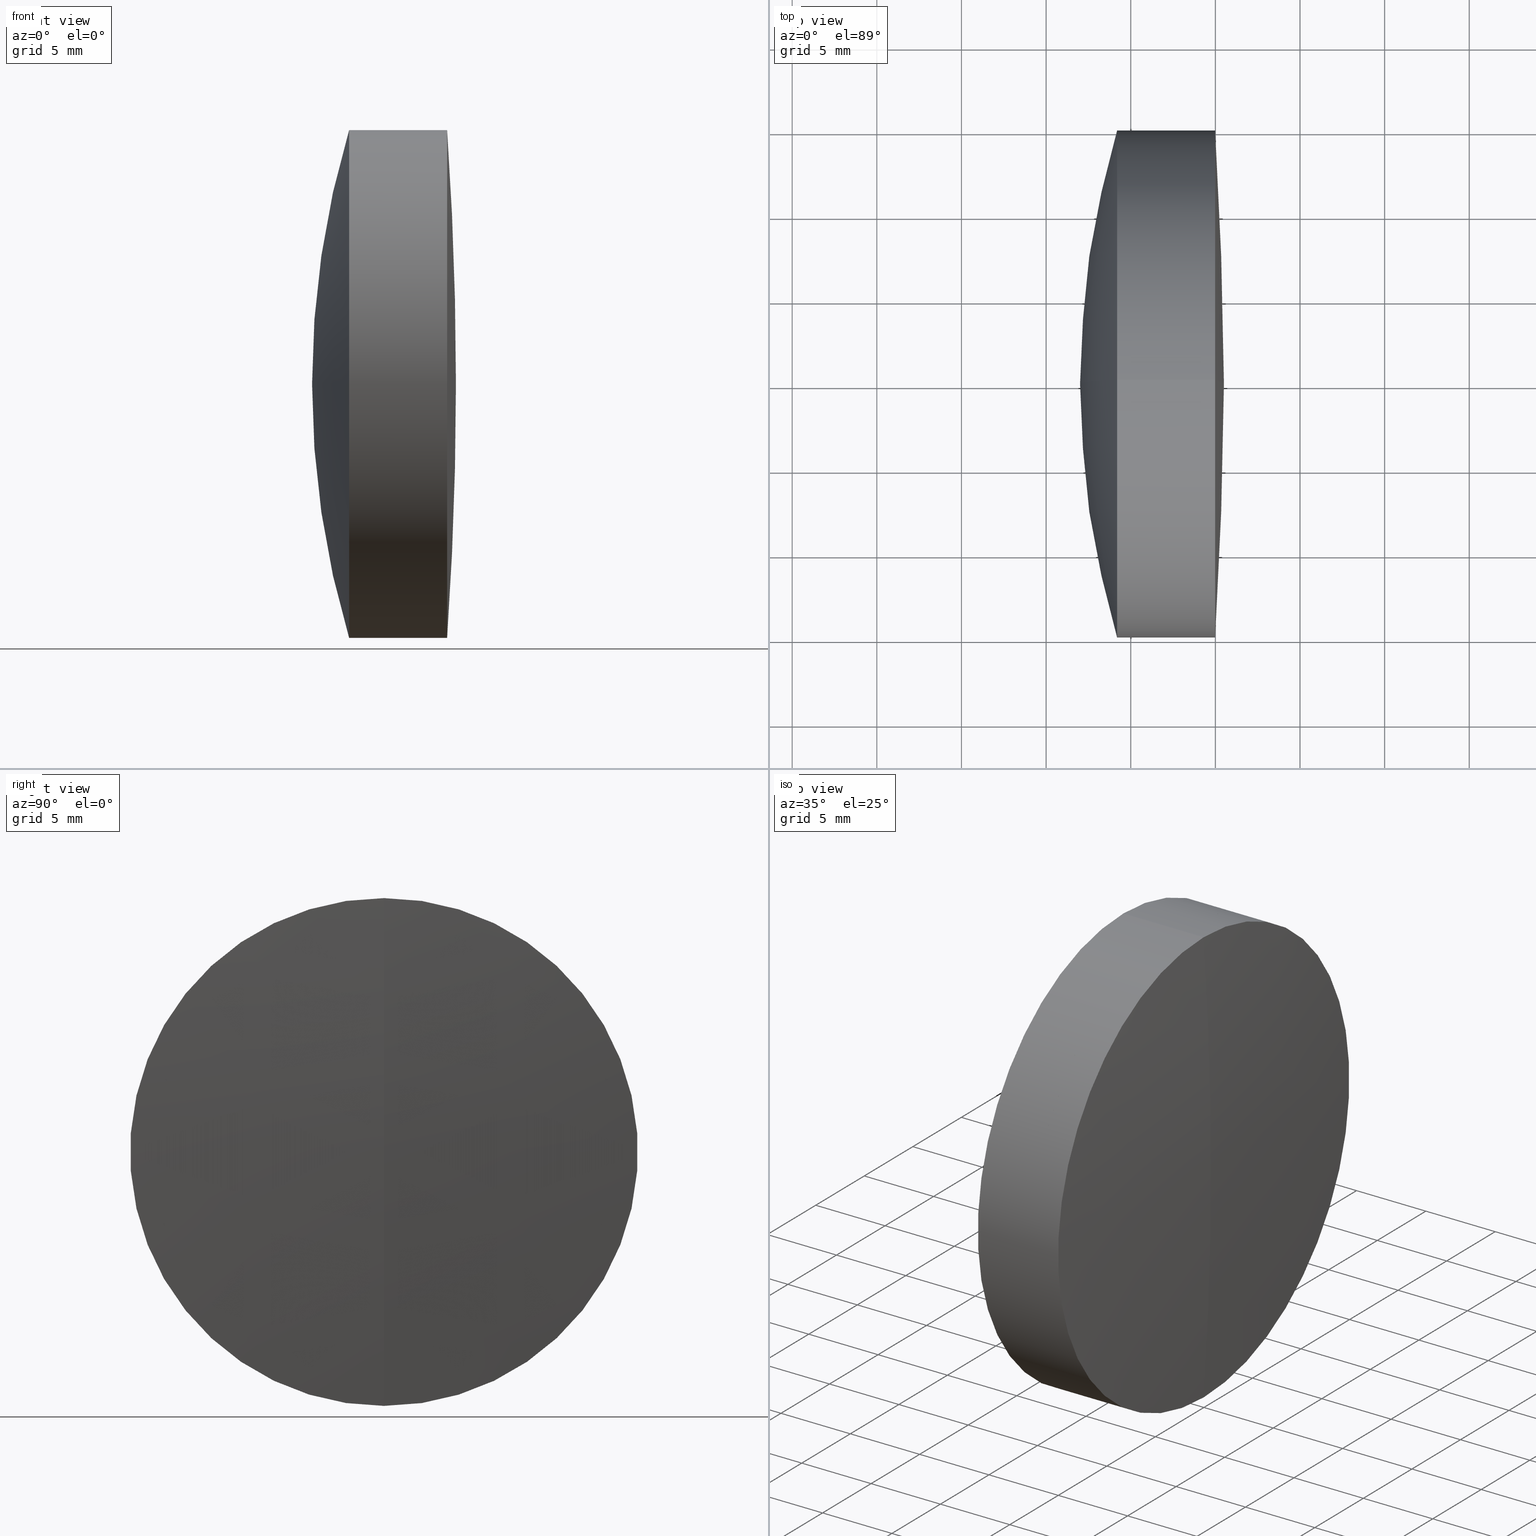
[diagram: canonical four-view strip — front | top / right | iso, engineering-drawing reading convention]
A machine part, canonical four-view strip (front | top / right | iso — engineering-drawing reading convention). The complete STEP part file that produces these views, byte-faithful:
ISO-10303-21;
HEADER;
FILE_DESCRIPTION (( 'STEP AP214' ),
    '1' );
FILE_NAME ('145131.STEP',
    '2019-06-04T02:16:01',
    ( 'user' ),
    ( '΢���й�' ),
    'SwSTEP 2.0',
    'SolidWorks 2016',
    '' );
FILE_SCHEMA (( 'AUTOMOTIVE_DESIGN' ));
ENDSEC;

DATA;
#1 = APPLICATION_CONTEXT ( 'automotive_design' ) ;
#2 = AXIS2_PLACEMENT_3D ( 'NONE', #231, #78, #183 ) ;
#3 =( LENGTH_UNIT ( ) NAMED_UNIT ( * ) SI_UNIT ( .MILLI., .METRE. ) );
#4 = ORIENTED_EDGE ( 'NONE', *, *, #266, .T. ) ;
#5 =( LENGTH_UNIT ( ) NAMED_UNIT ( * ) SI_UNIT ( .MILLI., .METRE. ) );
#6 = CARTESIAN_POINT ( 'NONE',  ( 532.9862274353328100, 0.0000000000000000000, 0.0000000000000000000 ) ) ;
#7 = COLOUR_RGB ( '',1.000000000000000000, 1.000000000000000000, 1.000000000000000000 ) ;
#8 = DIRECTION ( 'NONE',  ( -0.0000000000000000000, 1.000000000000000000, 1.224646799147353200E-016 ) ) ;
#9 = SURFACE_STYLE_FILL_AREA ( #180 ) ;
#10 = EDGE_LOOP ( 'NONE', ( #16, #149, #244, #250 ) ) ;
#11 = DIRECTION ( 'NONE',  ( 0.0000000000000000000, 0.0000000000000000000, 1.000000000000000000 ) ) ;
#12 = CIRCLE ( 'NONE', #173, 14.99999999999973900 ) ;
#13 = CARTESIAN_POINT ( 'NONE',  ( 319.2069652250824000, 0.0000000000000000000, 0.0000000000000000000 ) ) ;
#14 = FACE_OUTER_BOUND ( 'NONE', #337, .T. ) ;
#15 = ORIENTED_EDGE ( 'NONE', *, *, #272, .T. ) ;
#16 = ORIENTED_EDGE ( 'NONE', *, *, #181, .T. ) ;
#17 = ADVANCED_FACE ( 'NONE', ( #14 ), #297, .T. ) ;
#18 = AXIS2_PLACEMENT_3D ( 'NONE', #276, #262, #50 ) ;
#19 = CARTESIAN_POINT ( 'NONE',  ( 317.2069652250824000, 0.0000000000000000000, 9.183549615799121200E-038 ) ) ;
#20 = PRESENTATION_LAYER_ASSIGNMENT (  '', '', ( #315 ) ) ;
#21 = VECTOR ( 'NONE', #344, 1000.000000000000000 ) ;
#22 = ORIENTED_EDGE ( 'NONE', *, *, #247, .F. ) ;
#23 = PRESENTATION_LAYER_ASSIGNMENT (  '', '', ( #300 ) ) ;
#24 = CARTESIAN_POINT ( 'NONE',  ( 317.2069652250824000, 0.0000000000000000000, 9.183549615799121200E-038 ) ) ;
#25 = DIRECTION ( 'NONE',  ( 0.0000000000000000000, 0.0000000000000000000, 1.000000000000000000 ) ) ;
#26 = DIRECTION ( 'NONE',  ( 0.0000000000000000000, 1.000000000000000000, 0.0000000000000000000 ) ) ;
#27 = VECTOR ( 'NONE', #326, 1000.000000000000000 ) ;
#28 = DIRECTION ( 'NONE',  ( 0.0000000000000000000, 1.000000000000000000, 0.0000000000000000000 ) ) ;
#29 = DIRECTION ( 'NONE',  ( 1.000000000000000000, 0.0000000000000000000, 0.0000000000000000000 ) ) ;
#30 = SURFACE_SIDE_STYLE ('',( #45 ) ) ;
#31 = CARTESIAN_POINT ( 'NONE',  ( 532.9862274353328100, 0.0000000000000000000, 14.99999999999960200 ) ) ;
#32 = SURFACE_SIDE_STYLE ('',( #332 ) ) ;
#33 = CIRCLE ( 'NONE', #237, 216.2999999999999000 ) ;
#34 = FILL_AREA_STYLE_COLOUR ( '', #7 ) ;
#35 = CARTESIAN_POINT ( 'NONE',  ( 532.9862274353328100, 0.0000000000000000000, 0.0000000000000000000 ) ) ;
#36 = MANIFOLD_SOLID_BREP ( '��ת3', #309 ) ;
#37 = DIRECTION ( 'NONE',  ( -1.000000000000000000, -0.0000000000000000000, -0.0000000000000000000 ) ) ;
#38 = AXIS2_PLACEMENT_3D ( 'NONE', #148, #273, #11 ) ;
#39 = VERTEX_POINT ( 'NONE', #101 ) ;
#40 = SPHERICAL_SURFACE ( 'NONE', #70, 216.3000000000000400 ) ;
#41 = MECHANICAL_DESIGN_GEOMETRIC_PRESENTATION_REPRESENTATION (  '', ( #315 ), #55 ) ;
#42 = MECHANICAL_DESIGN_GEOMETRIC_PRESENTATION_REPRESENTATION (  '', ( #300 ), #56 ) ;
#43 = AXIS2_PLACEMENT_3D ( 'NONE', #91, #86, #76 ) ;
#44 = ADVANCED_FACE ( 'NONE', ( #318 ), #40, .T. ) ;
#45 = SURFACE_STYLE_FILL_AREA ( #306 ) ;
#46 = FACE_OUTER_BOUND ( 'NONE', #165, .T. ) ;
#47 = EDGE_LOOP ( 'NONE', ( #213, #145, #118 ) ) ;
#48 = DIRECTION ( 'NONE',  ( 0.0000000000000000000, -1.000000000000000000, 0.0000000000000000000 ) ) ;
#49 = APPLICATION_PROTOCOL_DEFINITION ( 'draft international standard', 'automotive_design', 1998, #1 ) ;
#50 = DIRECTION ( 'NONE',  ( 0.0000000000000000000, 0.0000000000000000000, 1.000000000000000000 ) ) ;
#51 = CARTESIAN_POINT ( 'NONE',  ( 534.9862274353326900, 0.0000000000000000000, 14.99999999999961500 ) ) ;
#52 = DIRECTION ( 'NONE',  ( -1.000000000000000000, -0.0000000000000000000, -0.0000000000000000000 ) ) ;
#53 = VERTEX_POINT ( 'NONE', #124 ) ;
#54 = SURFACE_STYLE_USAGE ( .BOTH. , #30 ) ;
#55 =( GEOMETRIC_REPRESENTATION_CONTEXT ( 3 ) GLOBAL_UNCERTAINTY_ASSIGNED_CONTEXT ( ( #223 ) ) GLOBAL_UNIT_ASSIGNED_CONTEXT ( ( #338, #99, #130 ) ) REPRESENTATION_CONTEXT ( 'NONE', 'WORKASPACE' ) );
#56 =( GEOMETRIC_REPRESENTATION_CONTEXT ( 3 ) GLOBAL_UNCERTAINTY_ASSIGNED_CONTEXT ( ( #96 ) ) GLOBAL_UNIT_ASSIGNED_CONTEXT ( ( #3, #208, #323 ) ) REPRESENTATION_CONTEXT ( 'NONE', 'WORKASPACE' ) );
#57 = DIRECTION ( 'NONE',  ( 0.0000000000000000000, 0.0000000000000000000, 1.000000000000000000 ) ) ;
#58 = EDGE_CURVE ( 'NONE', #127, #39, #341, .T. ) ;
#59 = CARTESIAN_POINT ( 'NONE',  ( 533.5069652250824700, 0.0000000000000000000, 1.324455513277862900E-014 ) ) ;
#60 = DIRECTION ( 'NONE',  ( -1.000000000000000000, -0.0000000000000000000, -0.0000000000000000000 ) ) ;
#61 = DIRECTION ( 'NONE',  ( 0.0000000000000000000, -1.224646799147353500E-016, 1.000000000000000000 ) ) ;
#62 = SPHERICAL_SURFACE ( 'NONE', #251, 52.50000000000002100 ) ;
#63 = STYLED_ITEM ( 'NONE', ( #191 ), #271 ) ;
#64 = ORIENTED_EDGE ( 'NONE', *, *, #58, .F. ) ;
#65 = FACE_OUTER_BOUND ( 'NONE', #264, .T. ) ;
#66 = ORIENTED_EDGE ( 'NONE', *, *, #240, .F. ) ;
#67 = ORIENTED_EDGE ( 'NONE', *, *, #181, .F. ) ;
#68 = ADVANCED_FACE ( 'NONE', ( #303 ), #308, .T. ) ;
#69 = CARTESIAN_POINT ( 'NONE',  ( 527.0069652250824700, 0.0000000000000000000, -4.754858325981071400E-013 ) ) ;
#70 = AXIS2_PLACEMENT_3D ( 'NONE', #19, #105, #126 ) ;
#71 = CIRCLE ( 'NONE', #203, 216.3000000000000400 ) ;
#72 = VERTEX_POINT ( 'NONE', #69 ) ;
#73 = CARTESIAN_POINT ( 'NONE',  ( 579.5069652250824700, 0.0000000000000000000, -4.787005304458688400E-013 ) ) ;
#74 = DIRECTION ( 'NONE',  ( 0.0000000000000000000, 0.0000000000000000000, -1.000000000000000000 ) ) ;
#75 = EDGE_CURVE ( 'NONE', #127, #82, #153, .T. ) ;
#76 = DIRECTION ( 'NONE',  ( 0.0000000000000000000, 0.0000000000000000000, 1.000000000000000000 ) ) ;
#77 =( NAMED_UNIT ( * ) PLANE_ANGLE_UNIT ( ) SI_UNIT ( $, .RADIAN. ) );
#78 = DIRECTION ( 'NONE',  ( -1.000000000000000000, -0.0000000000000000000, -0.0000000000000000000 ) ) ;
#79 = ORIENTED_EDGE ( 'NONE', *, *, #233, .F. ) ;
#80 = AXIS2_PLACEMENT_3D ( 'NONE', #35, #325, #141 ) ;
#81 = DIRECTION ( 'NONE',  ( 0.0000000000000000000, 0.0000000000000000000, 1.000000000000000000 ) ) ;
#82 = VERTEX_POINT ( 'NONE', #284 ) ;
#83 = DIRECTION ( 'NONE',  ( 0.0000000000000000000, 0.0000000000000000000, 1.000000000000000000 ) ) ;
#84 = EDGE_LOOP ( 'NONE', ( #64, #188, #283 ) ) ;
#85 = ORIENTED_EDGE ( 'NONE', *, *, #75, .F. ) ;
#86 = DIRECTION ( 'NONE',  ( -1.000000000000000000, -0.0000000000000000000, -0.0000000000000000000 ) ) ;
#87 = FILL_AREA_STYLE_COLOUR ( '', #122 ) ;
#88 = LINE ( 'NONE', #232, #21 ) ;
#89 = ORIENTED_EDGE ( 'NONE', *, *, #128, .F. ) ;
#90 = AXIS2_PLACEMENT_3D ( 'NONE', #259, #157, #279 ) ;
#91 = CARTESIAN_POINT ( 'NONE',  ( 529.1954357313371700, 0.0000000000000000000, 0.0000000000000000000 ) ) ;
#92 = EDGE_CURVE ( 'NONE', #246, #260, #144, .T. ) ;
#93 = FACE_OUTER_BOUND ( 'NONE', #47, .T. ) ;
#94 = CIRCLE ( 'NONE', #217, 14.99999999999961500 ) ;
#95 = ORIENTED_EDGE ( 'NONE', *, *, #252, .F. ) ;
#96 = UNCERTAINTY_MEASURE_WITH_UNIT (LENGTH_MEASURE( 1.000000000000000100E-005 ), #3, 'distance_accuracy_value', 'NONE');
#97 = ADVANCED_FACE ( 'NONE', ( #294 ), #222, .F. ) ;
#98 = AXIS2_PLACEMENT_3D ( 'NONE', #175, #60, #261 ) ;
#99 =( NAMED_UNIT ( * ) PLANE_ANGLE_UNIT ( ) SI_UNIT ( $, .RADIAN. ) );
#100 = ORIENTED_EDGE ( 'NONE', *, *, #220, .T. ) ;
#101 = CARTESIAN_POINT ( 'NONE',  ( 532.9862274353328100, 0.0000000000000000000, 14.99999999999968700 ) ) ;
#102 = SPHERICAL_SURFACE ( 'NONE', #238, 216.3000000000000100 ) ;
#103 = CYLINDRICAL_SURFACE ( 'NONE', #268, 14.99999999999967700 ) ;
#104 = EDGE_LOOP ( 'NONE', ( #123, #100, #241 ) ) ;
#105 = DIRECTION ( 'NONE',  ( 0.0000000000000000000, 1.000000000000000000, 0.0000000000000000000 ) ) ;
#106 = ORIENTED_EDGE ( 'NONE', *, *, #247, .T. ) ;
#107 = CARTESIAN_POINT ( 'NONE',  ( 0.0000000000000000000, 0.0000000000000000000, 0.0000000000000000000 ) ) ;
#108 = DIRECTION ( 'NONE',  ( 0.0000000000000000000, -1.224646799147353200E-016, 1.000000000000000000 ) ) ;
#109 = AXIS2_PLACEMENT_3D ( 'NONE', #73, #28, #255 ) ;
#110 = AXIS2_PLACEMENT_3D ( 'NONE', #107, #239, #29 ) ;
#111 = DIRECTION ( 'NONE',  ( 0.0000000000000000000, 0.0000000000000000000, 1.000000000000000000 ) ) ;
#112 = EDGE_CURVE ( 'NONE', #82, #39, #334, .T. ) ;
#113 = DIRECTION ( 'NONE',  ( -1.000000000000000000, -0.0000000000000000000, -0.0000000000000000000 ) ) ;
#114 = DIRECTION ( 'NONE',  ( 0.0000000000000000000, 0.0000000000000000000, 1.000000000000000000 ) ) ;
#115 = CARTESIAN_POINT ( 'NONE',  ( -0.5519199926577972300, 0.0000000000000000000, 14.99999999999967700 ) ) ;
#116 = PRESENTATION_LAYER_ASSIGNMENT (  '', '', ( #63 ) ) ;
#117 = ADVANCED_BREP_SHAPE_REPRESENTATION ( '145131', ( #271, #36, #110 ), #187 ) ;
#118 = ORIENTED_EDGE ( 'NONE', *, *, #266, .F. ) ;
#119 = CYLINDRICAL_SURFACE ( 'NONE', #98, 14.99999999999960700 ) ;
#120 = DIRECTION ( 'NONE',  ( 0.0000000000000000000, -1.000000000000000000, 0.0000000000000000000 ) ) ;
#121 = ADVANCED_FACE ( 'NONE', ( #93 ), #263, .T. ) ;
#122 = COLOUR_RGB ( '',1.000000000000000000, 1.000000000000000000, 1.000000000000000000 ) ;
#123 = ORIENTED_EDGE ( 'NONE', *, *, #204, .F. ) ;
#124 = CARTESIAN_POINT ( 'NONE',  ( 535.5069652250823500, 0.0000000000000000000, 1.324455513277862000E-014 ) ) ;
#125 = PRODUCT_DEFINITION ( 'δ֪', '', #150, #320 ) ;
#126 = DIRECTION ( 'NONE',  ( 0.0000000000000000000, 0.0000000000000000000, 1.000000000000000000 ) ) ;
#127 = VERTEX_POINT ( 'NONE', #172 ) ;
#128 = EDGE_CURVE ( 'NONE', #139, #210, #156, .T. ) ;
#129 = CARTESIAN_POINT ( 'NONE',  ( 317.2069652250824000, 0.0000000000000000000, 9.183549615799121200E-038 ) ) ;
#130 =( NAMED_UNIT ( * ) SI_UNIT ( $, .STERADIAN. ) SOLID_ANGLE_UNIT ( ) );
#131 =( NAMED_UNIT ( * ) SI_UNIT ( $, .STERADIAN. ) SOLID_ANGLE_UNIT ( ) );
#132 = AXIS2_PLACEMENT_3D ( 'NONE', #133, #312, #253 ) ;
#133 = CARTESIAN_POINT ( 'NONE',  ( 534.9862274353326900, 0.0000000000000000000, 0.0000000000000000000 ) ) ;
#134 = CARTESIAN_POINT ( 'NONE',  ( 317.2069652250824000, 0.0000000000000000000, 9.183549615799121200E-038 ) ) ;
#135 = ORIENTED_EDGE ( 'NONE', *, *, #198, .T. ) ;
#136 = MECHANICAL_DESIGN_GEOMETRIC_PRESENTATION_REPRESENTATION (  '', ( #63 ), #155 ) ;
#137 = CARTESIAN_POINT ( 'NONE',  ( 319.2069652250824000, 0.0000000000000000000, 0.0000000000000000000 ) ) ;
#138 = FACE_OUTER_BOUND ( 'NONE', #330, .T. ) ;
#139 = VERTEX_POINT ( 'NONE', #301 ) ;
#140 = DIRECTION ( 'NONE',  ( 0.0000000000000000000, 0.0000000000000000000, 1.000000000000000000 ) ) ;
#141 = DIRECTION ( 'NONE',  ( 0.0000000000000000000, 0.0000000000000000000, 1.000000000000000000 ) ) ;
#142 = DIRECTION ( 'NONE',  ( -1.000000000000000000, -0.0000000000000000000, -0.0000000000000000000 ) ) ;
#143 = DIRECTION ( 'NONE',  ( -1.000000000000000000, -0.0000000000000000000, -0.0000000000000000000 ) ) ;
#144 = CIRCLE ( 'NONE', #132, 14.99999999999961500 ) ;
#145 = ORIENTED_EDGE ( 'NONE', *, *, #151, .T. ) ;
#146 = CIRCLE ( 'NONE', #347, 52.50000000000002100 ) ;
#147 = EDGE_LOOP ( 'NONE', ( #305, #106, #179 ) ) ;
#148 = CARTESIAN_POINT ( 'NONE',  ( 534.9862274353326900, 0.0000000000000000000, 0.0000000000000000000 ) ) ;
#149 = ORIENTED_EDGE ( 'NONE', *, *, #128, .T. ) ;
#150 = PRODUCT_DEFINITION_FORMATION_WITH_SPECIFIED_SOURCE ( '�κ�', '', #302, .NOT_KNOWN. ) ;
#151 = EDGE_CURVE ( 'NONE', #154, #235, #169, .T. ) ;
#152 = AXIS2_PLACEMENT_3D ( 'NONE', #160, #280, #111 ) ;
#153 = CIRCLE ( 'NONE', #90, 216.3000000000000100 ) ;
#154 = VERTEX_POINT ( 'NONE', #59 ) ;
#155 =( GEOMETRIC_REPRESENTATION_CONTEXT ( 3 ) GLOBAL_UNCERTAINTY_ASSIGNED_CONTEXT ( ( #254 ) ) GLOBAL_UNIT_ASSIGNED_CONTEXT ( ( #5, #243, #168 ) ) REPRESENTATION_CONTEXT ( 'NONE', 'WORKASPACE' ) );
#156 = LINE ( 'NONE', #298, #27 ) ;
#157 = DIRECTION ( 'NONE',  ( -0.0000000000000000000, 1.000000000000000000, 1.224646799147353200E-016 ) ) ;
#158 = FILL_AREA_STYLE_COLOUR ( '', #288 ) ;
#159 = CARTESIAN_POINT ( 'NONE',  ( 579.5069652250824700, 0.0000000000000000000, -4.787005304458688400E-013 ) ) ;
#160 = CARTESIAN_POINT ( 'NONE',  ( 532.9862274353328100, 0.0000000000000000000, 0.0000000000000000000 ) ) ;
#161 = CLOSED_SHELL ( 'NONE', ( #44, #248, #335, #68, #278, #121 ) ) ;
#162 = DIRECTION ( 'NONE',  ( 0.0000000000000000000, 1.000000000000000000, 0.0000000000000000000 ) ) ;
#163 = CARTESIAN_POINT ( 'NONE',  ( 579.5069652250824700, 0.0000000000000000000, -4.787005304458688400E-013 ) ) ;
#164 = DIRECTION ( 'NONE',  ( 0.0000000000000000000, -1.224646799147353200E-016, 1.000000000000000000 ) ) ;
#165 = EDGE_LOOP ( 'NONE', ( #277, #194, #66 ) ) ;
#166 = PRODUCT_RELATED_PRODUCT_CATEGORY ( 'part', '', ( #302 ) ) ;
#167 = EDGE_CURVE ( 'NONE', #274, #210, #94, .T. ) ;
#168 =( NAMED_UNIT ( * ) SI_UNIT ( $, .STERADIAN. ) SOLID_ANGLE_UNIT ( ) );
#169 = CIRCLE ( 'NONE', #185, 216.3000000000000400 ) ;
#170 = AXIS2_PLACEMENT_3D ( 'NONE', #316, #339, #25 ) ;
#171 = CARTESIAN_POINT ( 'NONE',  ( 529.1954357313371700, 0.0000000000000000000, 0.0000000000000000000 ) ) ;
#172 = CARTESIAN_POINT ( 'NONE',  ( 533.5069652250824700, 0.0000000000000000000, 1.324455513277862600E-014 ) ) ;
#173 = AXIS2_PLACEMENT_3D ( 'NONE', #6, #142, #83 ) ;
#174 = ORIENTED_EDGE ( 'NONE', *, *, #151, .F. ) ;
#175 = CARTESIAN_POINT ( 'NONE',  ( 124.5233095260452400, 0.0000000000000000000, 0.0000000000000000000 ) ) ;
#176 = SPHERICAL_SURFACE ( 'NONE', #290, 216.2999999999999000 ) ;
#177 = ADVANCED_FACE ( 'NONE', ( #234 ), #103, .T. ) ;
#178 = SHAPE_DEFINITION_REPRESENTATION ( #333, #117 ) ;
#179 = ORIENTED_EDGE ( 'NONE', *, *, #233, .T. ) ;
#180 = FILL_AREA_STYLE ('',( #158 ) ) ;
#181 = EDGE_CURVE ( 'NONE', #235, #139, #282, .T. ) ;
#182 = CARTESIAN_POINT ( 'NONE',  ( -0.5519199926577972300, 1.836970198720990100E-015, -14.99999999999967700 ) ) ;
#183 = DIRECTION ( 'NONE',  ( 0.0000000000000000000, 0.0000000000000000000, 1.000000000000000000 ) ) ;
#184 = DIRECTION ( 'NONE',  ( 0.0000000000000000000, 0.0000000000000000000, -1.000000000000000000 ) ) ;
#185 = AXIS2_PLACEMENT_3D ( 'NONE', #134, #214, #184 ) ;
#186 = VECTOR ( 'NONE', #218, 1000.000000000000000 ) ;
#187 =( GEOMETRIC_REPRESENTATION_CONTEXT ( 3 ) GLOBAL_UNCERTAINTY_ASSIGNED_CONTEXT ( ( #200 ) ) GLOBAL_UNIT_ASSIGNED_CONTEXT ( ( #242, #77, #131 ) ) REPRESENTATION_CONTEXT ( 'NONE', 'WORKASPACE' ) );
#188 = ORIENTED_EDGE ( 'NONE', *, *, #75, .T. ) ;
#189 = PRODUCT_CONTEXT ( 'NONE', #328, 'mechanical' ) ;
#190 = DIRECTION ( 'NONE',  ( -0.0000000000000000000, 1.000000000000000000, 1.224646799147353200E-016 ) ) ;
#191 = PRESENTATION_STYLE_ASSIGNMENT (( #216 ) ) ;
#192 = FILL_AREA_STYLE ('',( #34 ) ) ;
#193 = DIRECTION ( 'NONE',  ( 0.0000000000000000000, 1.000000000000000000, 0.0000000000000000000 ) ) ;
#194 = ORIENTED_EDGE ( 'NONE', *, *, #204, .T. ) ;
#195 = FACE_OUTER_BOUND ( 'NONE', #10, .T. ) ;
#196 = FACE_OUTER_BOUND ( 'NONE', #104, .T. ) ;
#197 = ORIENTED_EDGE ( 'NONE', *, *, #272, .F. ) ;
#198 = EDGE_CURVE ( 'NONE', #235, #274, #88, .T. ) ;
#199 = AXIS2_PLACEMENT_3D ( 'NONE', #345, #317, #140 ) ;
#200 = UNCERTAINTY_MEASURE_WITH_UNIT (LENGTH_MEASURE( 1.000000000000000100E-005 ), #242, 'distance_accuracy_value', 'NONE');
#201 = ADVANCED_FACE ( 'NONE', ( #196 ), #176, .T. ) ;
#202 = ORIENTED_EDGE ( 'NONE', *, *, #252, .T. ) ;
#203 = AXIS2_PLACEMENT_3D ( 'NONE', #257, #8, #61 ) ;
#204 = EDGE_CURVE ( 'NONE', #53, #246, #33, .T. ) ;
#205 = CYLINDRICAL_SURFACE ( 'NONE', #219, 14.99999999999960700 ) ;
#206 = ORIENTED_EDGE ( 'NONE', *, *, #112, .F. ) ;
#207 = DIRECTION ( 'NONE',  ( 0.0000000000000000000, 0.0000000000000000000, 1.000000000000000000 ) ) ;
#208 =( NAMED_UNIT ( * ) PLANE_ANGLE_UNIT ( ) SI_UNIT ( $, .RADIAN. ) );
#209 = CARTESIAN_POINT ( 'NONE',  ( -0.5519199926577972300, 0.0000000000000000000, 0.0000000000000000000 ) ) ;
#210 = VERTEX_POINT ( 'NONE', #285 ) ;
#211 = CARTESIAN_POINT ( 'NONE',  ( 579.5069652250824700, 0.0000000000000000000, -4.787005304458688400E-013 ) ) ;
#212 = VECTOR ( 'NONE', #113, 1000.000000000000000 ) ;
#213 = ORIENTED_EDGE ( 'NONE', *, *, #286, .F. ) ;
#214 = DIRECTION ( 'NONE',  ( 0.0000000000000000000, -1.000000000000000000, 0.0000000000000000000 ) ) ;
#215 = EDGE_CURVE ( 'NONE', #210, #72, #307, .T. ) ;
#216 = SURFACE_STYLE_USAGE ( .BOTH. , #32 ) ;
#217 = AXIS2_PLACEMENT_3D ( 'NONE', #171, #143, #265 ) ;
#218 = DIRECTION ( 'NONE',  ( -1.000000000000000000, -0.0000000000000000000, -0.0000000000000000000 ) ) ;
#219 = AXIS2_PLACEMENT_3D ( 'NONE', #321, #37, #114 ) ;
#220 = EDGE_CURVE ( 'NONE', #53, #260, #313, .T. ) ;
#221 = FACE_OUTER_BOUND ( 'NONE', #314, .T. ) ;
#222 = SPHERICAL_SURFACE ( 'NONE', #170, 216.3000000000000100 ) ;
#223 = UNCERTAINTY_MEASURE_WITH_UNIT (LENGTH_MEASURE( 1.000000000000000100E-005 ), #338, 'distance_accuracy_value', 'NONE');
#224 = ORIENTED_EDGE ( 'NONE', *, *, #292, .F. ) ;
#225 = CIRCLE ( 'NONE', #38, 14.99999999999961500 ) ;
#226 = PRESENTATION_STYLE_ASSIGNMENT (( #258 ) ) ;
#227 = ORIENTED_EDGE ( 'NONE', *, *, #286, .T. ) ;
#228 = ADVANCED_FACE ( 'NONE', ( #46 ), #256, .T. ) ;
#229 = CARTESIAN_POINT ( 'NONE',  ( 319.2069652250824000, 0.0000000000000000000, 0.0000000000000000000 ) ) ;
#230 = ORIENTED_EDGE ( 'NONE', *, *, #58, .T. ) ;
#231 = CARTESIAN_POINT ( 'NONE',  ( -0.5519199926577972300, 0.0000000000000000000, 0.0000000000000000000 ) ) ;
#232 = CARTESIAN_POINT ( 'NONE',  ( 124.5233095260452400, 0.0000000000000000000, 14.99999999999960700 ) ) ;
#233 = EDGE_CURVE ( 'NONE', #274, #72, #146, .T. ) ;
#234 = FACE_OUTER_BOUND ( 'NONE', #289, .T. ) ;
#235 = VERTEX_POINT ( 'NONE', #31 ) ;
#236 = SURFACE_SIDE_STYLE ('',( #9 ) ) ;
#237 = AXIS2_PLACEMENT_3D ( 'NONE', #137, #296, #108 ) ;
#238 = AXIS2_PLACEMENT_3D ( 'NONE', #129, #193, #207 ) ;
#239 = DIRECTION ( 'NONE',  ( 0.0000000000000000000, 0.0000000000000000000, 1.000000000000000000 ) ) ;
#240 = EDGE_CURVE ( 'NONE', #260, #246, #225, .T. ) ;
#241 = ORIENTED_EDGE ( 'NONE', *, *, #92, .F. ) ;
#242 =( LENGTH_UNIT ( ) NAMED_UNIT ( * ) SI_UNIT ( .MILLI., .METRE. ) );
#243 =( NAMED_UNIT ( * ) PLANE_ANGLE_UNIT ( ) SI_UNIT ( $, .RADIAN. ) );
#244 = ORIENTED_EDGE ( 'NONE', *, *, #167, .F. ) ;
#245 = DIRECTION ( 'NONE',  ( 0.0000000000000000000, 0.0000000000000000000, -1.000000000000000000 ) ) ;
#246 = VERTEX_POINT ( 'NONE', #336 ) ;
#247 = EDGE_CURVE ( 'NONE', #210, #274, #281, .T. ) ;
#248 = ADVANCED_FACE ( 'NONE', ( #195 ), #119, .T. ) ;
#249 = AXIS2_PLACEMENT_3D ( 'NONE', #291, #52, #81 ) ;
#250 = ORIENTED_EDGE ( 'NONE', *, *, #198, .F. ) ;
#251 = AXIS2_PLACEMENT_3D ( 'NONE', #159, #26, #304 ) ;
#252 = EDGE_CURVE ( 'NONE', #246, #82, #293, .T. ) ;
#253 = DIRECTION ( 'NONE',  ( 0.0000000000000000000, 0.0000000000000000000, 1.000000000000000000 ) ) ;
#254 = UNCERTAINTY_MEASURE_WITH_UNIT (LENGTH_MEASURE( 1.000000000000000100E-005 ), #5, 'distance_accuracy_value', 'NONE');
#255 = DIRECTION ( 'NONE',  ( 0.0000000000000000000, 0.0000000000000000000, 1.000000000000000000 ) ) ;
#256 = SPHERICAL_SURFACE ( 'NONE', #18, 216.2999999999999000 ) ;
#257 = CARTESIAN_POINT ( 'NONE',  ( 317.2069652250824000, 0.0000000000000000000, 9.183549615799121200E-038 ) ) ;
#258 = SURFACE_STYLE_USAGE ( .BOTH. , #236 ) ;
#259 = CARTESIAN_POINT ( 'NONE',  ( 317.2069652250824000, 0.0000000000000000000, 9.183549615799121200E-038 ) ) ;
#260 = VERTEX_POINT ( 'NONE', #51 ) ;
#261 = DIRECTION ( 'NONE',  ( 0.0000000000000000000, 0.0000000000000000000, 1.000000000000000000 ) ) ;
#262 = DIRECTION ( 'NONE',  ( 0.0000000000000000000, 1.000000000000000000, 0.0000000000000000000 ) ) ;
#263 = SPHERICAL_SURFACE ( 'NONE', #199, 216.3000000000000400 ) ;
#264 = EDGE_LOOP ( 'NONE', ( #85, #230, #15 ) ) ;
#265 = DIRECTION ( 'NONE',  ( 0.0000000000000000000, 0.0000000000000000000, 1.000000000000000000 ) ) ;
#266 = EDGE_CURVE ( 'NONE', #139, #235, #324, .T. ) ;
#267 = DIRECTION ( 'NONE',  ( 0.0000000000000000000, 0.0000000000000000000, 1.000000000000000000 ) ) ;
#268 = AXIS2_PLACEMENT_3D ( 'NONE', #209, #346, #267 ) ;
#269 = APPLICATION_PROTOCOL_DEFINITION ( 'draft international standard', 'automotive_design', 1998, #328 ) ;
#270 = ORIENTED_EDGE ( 'NONE', *, *, #92, .T. ) ;
#271 = MANIFOLD_SOLID_BREP ( '��ת1', #161 ) ;
#272 = EDGE_CURVE ( 'NONE', #39, #82, #12, .T. ) ;
#273 = DIRECTION ( 'NONE',  ( -1.000000000000000000, -0.0000000000000000000, -0.0000000000000000000 ) ) ;
#274 = VERTEX_POINT ( 'NONE', #299 ) ;
#275 = ORIENTED_EDGE ( 'NONE', *, *, #240, .T. ) ;
#276 = CARTESIAN_POINT ( 'NONE',  ( 319.2069652250824000, 0.0000000000000000000, 0.0000000000000000000 ) ) ;
#277 = ORIENTED_EDGE ( 'NONE', *, *, #220, .F. ) ;
#278 = ADVANCED_FACE ( 'NONE', ( #138 ), #205, .T. ) ;
#279 = DIRECTION ( 'NONE',  ( 0.0000000000000000000, -1.224646799147353200E-016, 1.000000000000000000 ) ) ;
#280 = DIRECTION ( 'NONE',  ( -1.000000000000000000, -0.0000000000000000000, -0.0000000000000000000 ) ) ;
#281 = CIRCLE ( 'NONE', #43, 14.99999999999961500 ) ;
#282 = CIRCLE ( 'NONE', #249, 14.99999999999960200 ) ;
#283 = ORIENTED_EDGE ( 'NONE', *, *, #112, .T. ) ;
#284 = CARTESIAN_POINT ( 'NONE',  ( 532.9862274353328100, 1.836970198720991700E-015, -14.99999999999968700 ) ) ;
#285 = CARTESIAN_POINT ( 'NONE',  ( 529.1954357313371700, 1.836970198720976300E-015, -15.00000000000004400 ) ) ;
#286 = EDGE_CURVE ( 'NONE', #154, #139, #71, .T. ) ;
#287 = DIRECTION ( 'NONE',  ( 0.0000000000000000000, -1.000000000000000000, 0.0000000000000000000 ) ) ;
#288 = COLOUR_RGB ( '',1.000000000000000000, 1.000000000000000000, 1.000000000000000000 ) ;
#289 = EDGE_LOOP ( 'NONE', ( #275, #202, #197, #224 ) ) ;
#290 = AXIS2_PLACEMENT_3D ( 'NONE', #229, #162, #57 ) ;
#291 = CARTESIAN_POINT ( 'NONE',  ( 532.9862274353328100, 0.0000000000000000000, 0.0000000000000000000 ) ) ;
#292 = EDGE_CURVE ( 'NONE', #260, #39, #340, .T. ) ;
#293 = LINE ( 'NONE', #182, #212 ) ;
#294 = FACE_OUTER_BOUND ( 'NONE', #84, .T. ) ;
#295 = ORIENTED_EDGE ( 'NONE', *, *, #215, .T. ) ;
#296 = DIRECTION ( 'NONE',  ( -0.0000000000000000000, 1.000000000000000000, 1.224646799147353200E-016 ) ) ;
#297 = CYLINDRICAL_SURFACE ( 'NONE', #2, 14.99999999999967700 ) ;
#298 = CARTESIAN_POINT ( 'NONE',  ( 124.5233095260452400, 1.836970198720981900E-015, -14.99999999999960700 ) ) ;
#299 = CARTESIAN_POINT ( 'NONE',  ( 529.1954357313371700, 0.0000000000000000000, 14.99999999999956700 ) ) ;
#300 = STYLED_ITEM ( 'NONE', ( #322 ), #117 ) ;
#301 = CARTESIAN_POINT ( 'NONE',  ( 532.9862274353328100, 1.836970198720981500E-015, -14.99999999999960200 ) ) ;
#302 = PRODUCT ( '145131', '145131', '', ( #189 ) ) ;
#303 = FACE_OUTER_BOUND ( 'NONE', #147, .T. ) ;
#304 = DIRECTION ( 'NONE',  ( 0.0000000000000000000, 0.0000000000000000000, 1.000000000000000000 ) ) ;
#305 = ORIENTED_EDGE ( 'NONE', *, *, #215, .F. ) ;
#306 = FILL_AREA_STYLE ('',( #87 ) ) ;
#307 = CIRCLE ( 'NONE', #310, 52.50000000000002100 ) ;
#308 = SPHERICAL_SURFACE ( 'NONE', #109, 52.50000000000002100 ) ;
#309 = CLOSED_SHELL ( 'NONE', ( #228, #177, #97, #311, #17, #201 ) ) ;
#310 = AXIS2_PLACEMENT_3D ( 'NONE', #211, #190, #164 ) ;
#311 = ADVANCED_FACE ( 'NONE', ( #65 ), #102, .F. ) ;
#312 = DIRECTION ( 'NONE',  ( -1.000000000000000000, -0.0000000000000000000, -0.0000000000000000000 ) ) ;
#313 = CIRCLE ( 'NONE', #327, 216.2999999999999000 ) ;
#314 = EDGE_LOOP ( 'NONE', ( #329, #295, #79 ) ) ;
#315 = STYLED_ITEM ( 'NONE', ( #226 ), #36 ) ;
#316 = CARTESIAN_POINT ( 'NONE',  ( 317.2069652250824000, 0.0000000000000000000, 9.183549615799121200E-038 ) ) ;
#317 = DIRECTION ( 'NONE',  ( 0.0000000000000000000, 1.000000000000000000, 0.0000000000000000000 ) ) ;
#318 = FACE_OUTER_BOUND ( 'NONE', #319, .T. ) ;
#319 = EDGE_LOOP ( 'NONE', ( #174, #227, #67 ) ) ;
#320 = PRODUCT_DEFINITION_CONTEXT ( 'detailed design', #1, 'design' ) ;
#321 = CARTESIAN_POINT ( 'NONE',  ( 124.5233095260452400, 0.0000000000000000000, 0.0000000000000000000 ) ) ;
#322 = PRESENTATION_STYLE_ASSIGNMENT (( #54 ) ) ;
#323 =( NAMED_UNIT ( * ) SI_UNIT ( $, .STERADIAN. ) SOLID_ANGLE_UNIT ( ) );
#324 = CIRCLE ( 'NONE', #80, 14.99999999999960200 ) ;
#325 = DIRECTION ( 'NONE',  ( -1.000000000000000000, -0.0000000000000000000, -0.0000000000000000000 ) ) ;
#326 = DIRECTION ( 'NONE',  ( -1.000000000000000000, -0.0000000000000000000, -0.0000000000000000000 ) ) ;
#327 = AXIS2_PLACEMENT_3D ( 'NONE', #13, #120, #245 ) ;
#328 = APPLICATION_CONTEXT ( 'automotive_design' ) ;
#329 = ORIENTED_EDGE ( 'NONE', *, *, #167, .T. ) ;
#330 = EDGE_LOOP ( 'NONE', ( #89, #4, #135, #22 ) ) ;
#331 = AXIS2_PLACEMENT_3D ( 'NONE', #24, #287, #343 ) ;
#332 = SURFACE_STYLE_FILL_AREA ( #192 ) ;
#333 = PRODUCT_DEFINITION_SHAPE ( 'NONE', 'NONE',  #125 ) ;
#334 = CIRCLE ( 'NONE', #152, 14.99999999999973900 ) ;
#335 = ADVANCED_FACE ( 'NONE', ( #221 ), #62, .T. ) ;
#336 = CARTESIAN_POINT ( 'NONE',  ( 534.9862274353326900, 1.836970198720986600E-015, -14.99999999999961500 ) ) ;
#337 = EDGE_LOOP ( 'NONE', ( #95, #270, #342, #206 ) ) ;
#338 =( LENGTH_UNIT ( ) NAMED_UNIT ( * ) SI_UNIT ( .MILLI., .METRE. ) );
#339 = DIRECTION ( 'NONE',  ( 0.0000000000000000000, 1.000000000000000000, 0.0000000000000000000 ) ) ;
#340 = LINE ( 'NONE', #115, #186 ) ;
#341 = CIRCLE ( 'NONE', #331, 216.3000000000000100 ) ;
#342 = ORIENTED_EDGE ( 'NONE', *, *, #292, .T. ) ;
#343 = DIRECTION ( 'NONE',  ( 0.0000000000000000000, 0.0000000000000000000, -1.000000000000000000 ) ) ;
#344 = DIRECTION ( 'NONE',  ( -1.000000000000000000, -0.0000000000000000000, -0.0000000000000000000 ) ) ;
#345 = CARTESIAN_POINT ( 'NONE',  ( 317.2069652250824000, 0.0000000000000000000, 9.183549615799121200E-038 ) ) ;
#346 = DIRECTION ( 'NONE',  ( -1.000000000000000000, -0.0000000000000000000, -0.0000000000000000000 ) ) ;
#347 = AXIS2_PLACEMENT_3D ( 'NONE', #163, #48, #74 ) ;
ENDSEC;
END-ISO-10303-21;
